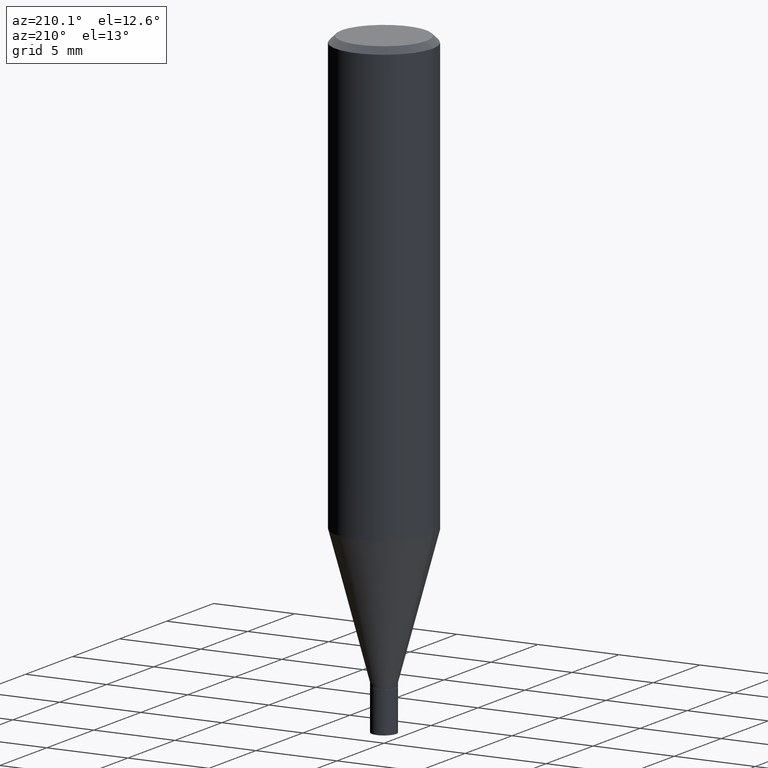
[diagram: clean part render]
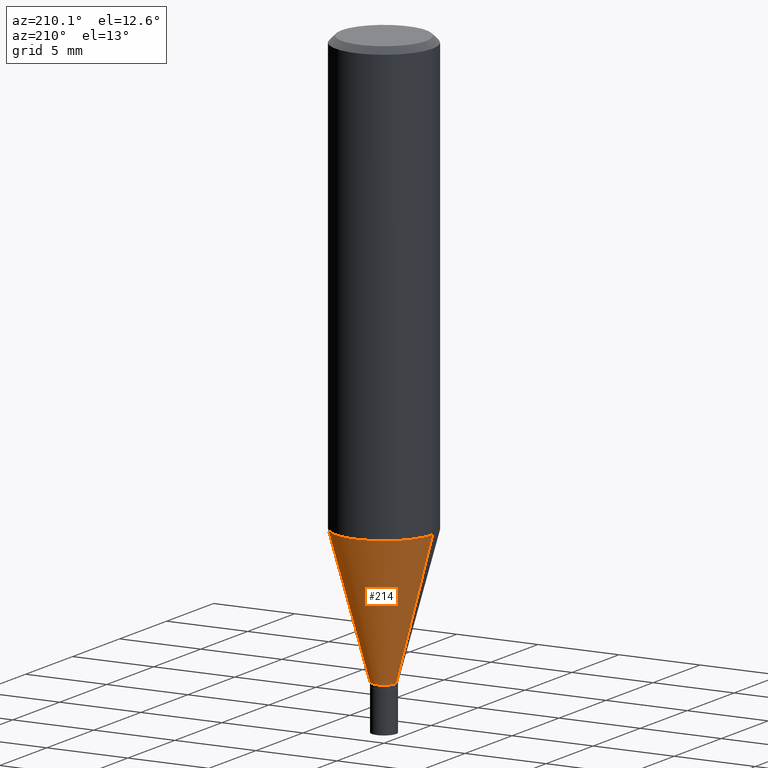
[diagram: same view with one face highlighted and labeled with its STEP entity id]
A machine part, auxiliary view. The second image highlights one B-rep face of the part: STEP entity #214.
In plain terms, the highlighted conical surface has half-angle 15 deg.
Its self-contained STEP definition (entity closure, byte-faithful):
#11 = CARTESIAN_POINT ( 'NONE',  ( 0.02954999999999937191, -5.065091978259746092E-15, -1.391599999999999948 ) ) ;
#13 = DIRECTION ( 'NONE',  ( 1.000000000000000000, -6.982962677686279332E-15, 0.000000000000000000 ) ) ;
#24 = VERTEX_POINT ( 'NONE', #11 ) ;
#37 = DIRECTION ( 'NONE',  ( 1.000000000000000000, -6.982962677686265133E-15, 0.000000000000000000 ) ) ;
#42 = CONICAL_SURFACE ( 'NONE', #310, 0.02954999999999937191, 0.2617993877991500740 ) ;
#49 = CARTESIAN_POINT ( 'NONE',  ( 3.403114390687236206E-29, -4.858745431134121215E-15, -1.391599999999999948 ) ) ;
#51 = LINE ( 'NONE', #55, #104 ) ;
#55 = CARTESIAN_POINT ( 'NONE',  ( 0.02954999999999937191, -5.065091978259746092E-15, -1.391599999999999948 ) ) ;
#71 = CARTESIAN_POINT ( 'NONE',  ( 3.403114390687236206E-29, -4.858745431134121215E-15, -1.391599999999999948 ) ) ;
#79 = AXIS2_PLACEMENT_3D ( 'NONE', #195, #144, #37 ) ;
#81 = DIRECTION ( 'NONE',  ( -0.2588190451025213501, 5.211531920934551042E-15, 0.9659258262890682012 ) ) ;
#91 = ORIENTED_EDGE ( 'NONE', *, *, #174, .F. ) ;
#104 = VECTOR ( 'NONE', #204, 39.37007874015747433 ) ;
#112 = CARTESIAN_POINT ( 'NONE',  ( -0.02954999999999937191, -3.757266927367296018E-15, -1.391599999999999948 ) ) ;
#114 = EDGE_LOOP ( 'NONE', ( #318, #339, #91, #203 ) ) ;
#123 = CIRCLE ( 'NONE', #446, 0.02954999999999937191 ) ;
#124 = EDGE_CURVE ( 'NONE', #332, #441, #415, .T. ) ;
#133 = VECTOR ( 'NONE', #81, 39.37007874015747433 ) ;
#144 = DIRECTION ( 'NONE',  ( -2.445468806185136597E-29, 3.491481338843145583E-15, 1.000000000000000000 ) ) ;
#174 = EDGE_CURVE ( 'NONE', #234, #441, #325, .T. ) ;
#188 = DIRECTION ( 'NONE',  ( -2.445468806185136597E-29, 3.491481338843145583E-15, 1.000000000000000000 ) ) ;
#195 = CARTESIAN_POINT ( 'NONE',  ( 2.594952735774397508E-29, -3.704904772950256010E-15, -1.061126900989774580 ) ) ;
#203 = ORIENTED_EDGE ( 'NONE', *, *, #429, .F. ) ;
#204 = DIRECTION ( 'NONE',  ( 0.2588190451025213501, 1.565188264969621968E-15, 0.9659258262890682012 ) ) ;
#214 = ADVANCED_FACE ( 'NONE', ( #383 ), #42, .T. ) ;
#234 = VERTEX_POINT ( 'NONE', #393 ) ;
#243 = DIRECTION ( 'NONE',  ( 1.000000000000000000, -6.982962677686279332E-15, 0.000000000000000000 ) ) ;
#245 = CARTESIAN_POINT ( 'NONE',  ( -0.1180999999999999689, -2.865753802017576629E-15, -1.061126900989774580 ) ) ;
#261 = CARTESIAN_POINT ( 'NONE',  ( -0.02954999999999937191, -4.648780052717015801E-15, -1.391599999999999948 ) ) ;
#310 = AXIS2_PLACEMENT_3D ( 'NONE', #49, #460, #243 ) ;
#318 = ORIENTED_EDGE ( 'NONE', *, *, #381, .T. ) ;
#325 = CIRCLE ( 'NONE', #79, 0.1180999999999999966 ) ;
#332 = VERTEX_POINT ( 'NONE', #112 ) ;
#339 = ORIENTED_EDGE ( 'NONE', *, *, #124, .T. ) ;
#381 = EDGE_CURVE ( 'NONE', #24, #332, #123, .T. ) ;
#383 = FACE_OUTER_BOUND ( 'NONE', #114, .T. ) ;
#393 = CARTESIAN_POINT ( 'NONE',  ( 0.1180999999999999689, -4.529592665185003484E-15, -1.061126900989774580 ) ) ;
#415 = LINE ( 'NONE', #261, #133 ) ;
#429 = EDGE_CURVE ( 'NONE', #24, #234, #51, .T. ) ;
#441 = VERTEX_POINT ( 'NONE', #245 ) ;
#446 = AXIS2_PLACEMENT_3D ( 'NONE', #71, #188, #13 ) ;
#460 = DIRECTION ( 'NONE',  ( -2.445468806185136597E-29, 3.491481338843145583E-15, 1.000000000000000000 ) ) ;